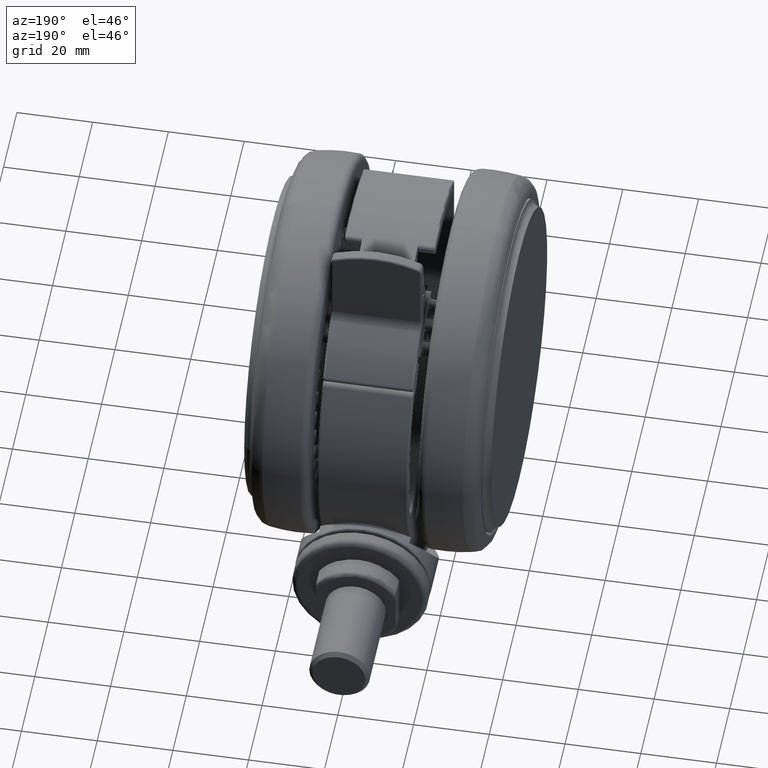
[diagram: clean part render]
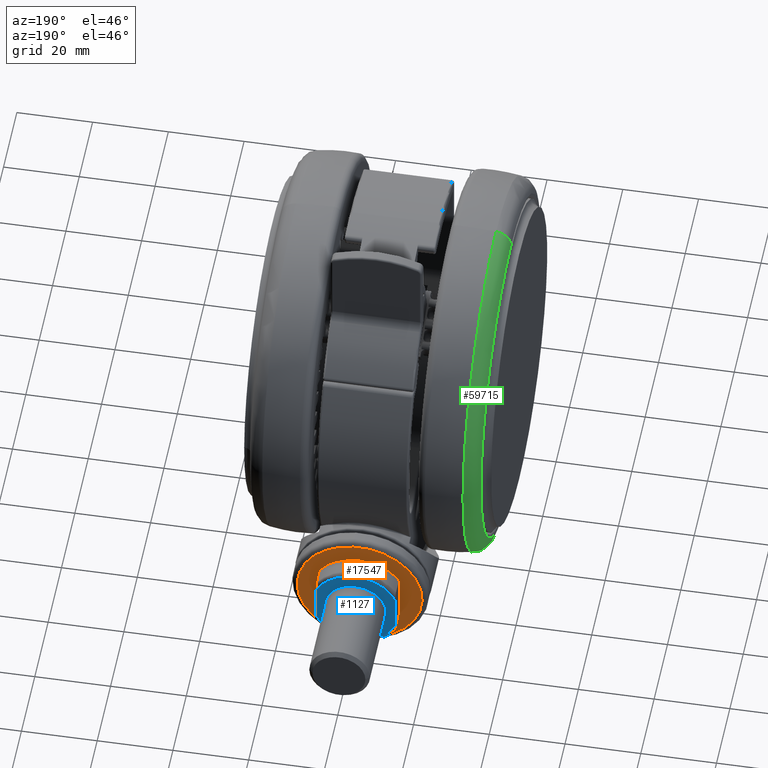
[diagram: same view with three faces highlighted in distinct colors, each labeled with its STEP entity id]
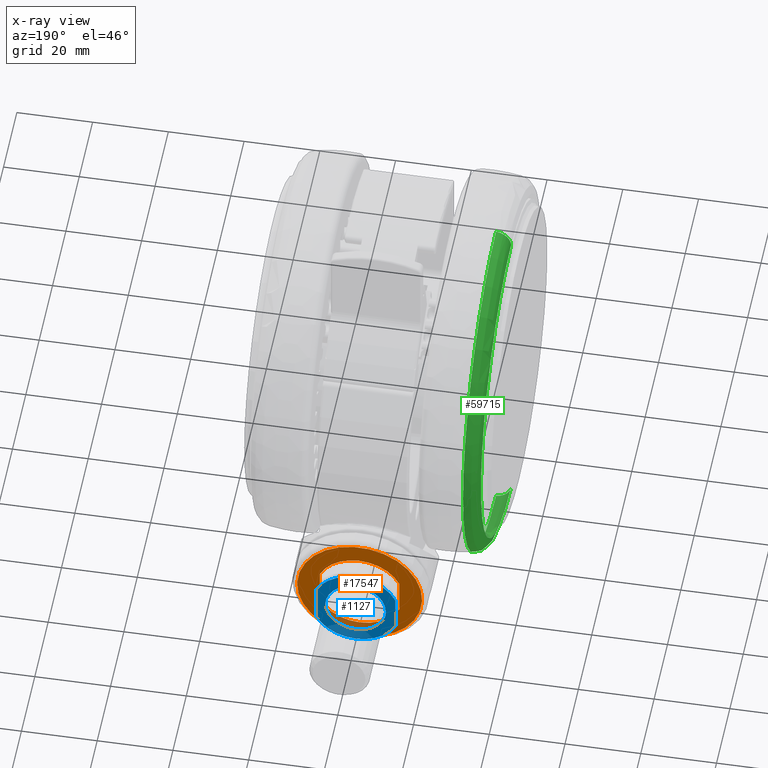
[diagram: x-ray of the same camera — body ghosted, the three highlighted faces saturated]
A machine part, auxiliary view with three faces highlighted in distinct colors.
The next image is the same camera in x-ray (body ghosted, the three faces saturated) — at least one of them is partly hidden behind the body in this view.
Their STEP definitions:

[orange] entity #17547 — the highlighted planar face has unit normal (-0, -1, -0).
#419 = CARTESIAN_POINT ( 'NONE',  ( -53.27953080936357800, 36.08692467634522700, -43.09999999999991600 ) ) ;
#1407 = PLANE ( 'NONE',  #68659 ) ;
#1791 = FACE_BOUND ( 'NONE', #37363, .T. ) ;
#5086 = EDGE_CURVE ( 'NONE', #35143, #78081, #33845, .T. ) ;
#7771 = DIRECTION ( 'NONE',  ( -0.02018180242854338700, -0.9958725363878073700, 0.08849059904447770200 ) ) ;
#8856 = DIRECTION ( 'NONE',  ( 0.02026128721468445700, 0.9997947190500677800, 0.0000000000000000000 ) ) ;
#11025 = ORIENTED_EDGE ( 'NONE', *, *, #31097, .T. ) ;
#11372 = DIRECTION ( 'NONE',  ( 0.9997947190500678900, -0.02026128721468445700, 0.0000000000000000000 ) ) ;
#11390 = VERTEX_POINT ( 'NONE', #12522 ) ;
#12034 = DIRECTION ( 'NONE',  ( -0.9997947190500678900, 0.02026128721468431100, 1.619707083229664900E-031 ) ) ;
#12522 = CARTESIAN_POINT ( 'NONE',  ( -53.61253054943453100, 19.65502782594639800, -31.13990511576603700 ) ) ;
#15863 = VERTEX_POINT ( 'NONE', #69038 ) ;
#16533 = ORIENTED_EDGE ( 'NONE', *, *, #48675, .T. ) ;
#16604 = ORIENTED_EDGE ( 'NONE', *, *, #19060, .T. ) ;
#17373 = AXIS2_PLACEMENT_3D ( 'NONE', #73643, #35833, #79971 ) ;
#17547 = ADVANCED_FACE ( 'NONE', ( #33422, #1791 ), #1407, .F. ) ;
#19060 = EDGE_CURVE ( 'NONE', #35143, #75800, #36676, .T. ) ;
#24087 = CARTESIAN_POINT ( 'NONE',  ( -53.27953080936357100, 36.08692467634522000, -32.59999999999992300 ) ) ;
#28719 = EDGE_LOOP ( 'NONE', ( #61593, #16533 ) ) ;
#29268 = ORIENTED_EDGE ( 'NONE', *, *, #76051, .T. ) ;
#29838 = VECTOR ( 'NONE', #8856, 1000.000000000000100 ) ;
#30432 = DIRECTION ( 'NONE',  ( -0.02018180242854322700, -0.9958725363878073700, 0.08849059904447771600 ) ) ;
#31097 = EDGE_CURVE ( 'NONE', #75800, #61043, #60283, .T. ) ;
#33422 = FACE_OUTER_BOUND ( 'NONE', #28719, .T. ) ;
#33845 = LINE ( 'NONE', #40369, #29838 ) ;
#34632 = CIRCLE ( 'NONE', #17373, 11.50000000000000000 ) ;
#35143 = VERTEX_POINT ( 'NONE', #77950 ) ;
#35833 = DIRECTION ( 'NONE',  ( 0.9997947190500678900, -0.02026128721468445700, 0.0000000000000000000 ) ) ;
#36676 = CIRCLE ( 'NONE', #80377, 11.50000000000000000 ) ;
#37363 = EDGE_LOOP ( 'NONE', ( #16604, #11025, #29268, #47382 ) ) ;
#38273 = AXIS2_PLACEMENT_3D ( 'NONE', #24087, #68280, #30432 ) ;
#39823 = EDGE_CURVE ( 'NONE', #11390, #15863, #70486, .T. ) ;
#40369 = CARTESIAN_POINT ( 'NONE',  ( -53.27953080936357800, 36.08692467634522700, -22.09999999999991300 ) ) ;
#45649 = DIRECTION ( 'NONE',  ( 0.9997947190500678900, -0.02026128721468430800, -4.336808689942018700E-019 ) ) ;
#45860 = CARTESIAN_POINT ( 'NONE',  ( -53.37456467022964500, 31.39747176952455000, -43.09999999999991600 ) ) ;
#47382 = ORIENTED_EDGE ( 'NONE', *, *, #5086, .F. ) ;
#48675 = EDGE_CURVE ( 'NONE', #15863, #11390, #71555, .T. ) ;
#49261 = CARTESIAN_POINT ( 'NONE',  ( -53.27953080936357800, 36.08692467634522700, -32.59999999999991600 ) ) ;
#49934 = CARTESIAN_POINT ( 'NONE',  ( -53.27953080936357100, 36.08692467634522000, -32.59999999999992300 ) ) ;
#55593 = DIRECTION ( 'NONE',  ( 0.0000000000000000000, 0.0000000000000000000, 1.000000000000000000 ) ) ;
#56275 = DIRECTION ( 'NONE',  ( -0.02018180242854322700, -0.9958725363878073700, 0.08849059904447771600 ) ) ;
#60283 = LINE ( 'NONE', #419, #75069 ) ;
#61043 = VERTEX_POINT ( 'NONE', #67124 ) ;
#61593 = ORIENTED_EDGE ( 'NONE', *, *, #39823, .T. ) ;
#67124 = CARTESIAN_POINT ( 'NONE',  ( -53.18449694849751100, 40.77637758316591000, -43.09999999999991600 ) ) ;
#68280 = DIRECTION ( 'NONE',  ( -0.9997947190500678900, 0.02026128721468431100, 1.619707083229664900E-031 ) ) ;
#68659 = AXIS2_PLACEMENT_3D ( 'NONE', #70718, #45649, #7771 ) ;
#69038 = CARTESIAN_POINT ( 'NONE',  ( -52.94653106929260400, 52.51882152674404100, -34.06009488423380600 ) ) ;
#69731 = DIRECTION ( 'NONE',  ( 0.02026128721468445700, 0.9997947190500677800, 0.0000000000000000000 ) ) ;
#70486 = CIRCLE ( 'NONE', #78413, 16.50000000000000400 ) ;
#70718 = CARTESIAN_POINT ( 'NONE',  ( -53.27953080936357100, 36.08692467634522000, -32.59999999999992300 ) ) ;
#71555 = CIRCLE ( 'NONE', #38273, 16.50000000000000400 ) ;
#73643 = CARTESIAN_POINT ( 'NONE',  ( -53.27953080936357800, 36.08692467634522700, -32.59999999999991600 ) ) ;
#75069 = VECTOR ( 'NONE', #69731, 1000.000000000000100 ) ;
#75800 = VERTEX_POINT ( 'NONE', #45860 ) ;
#76051 = EDGE_CURVE ( 'NONE', #61043, #78081, #34632, .T. ) ;
#77950 = CARTESIAN_POINT ( 'NONE',  ( -53.37456467022964500, 31.39747176952455000, -22.09999999999991300 ) ) ;
#78081 = VERTEX_POINT ( 'NONE', #78444 ) ;
#78413 = AXIS2_PLACEMENT_3D ( 'NONE', #49934, #12034, #56275 ) ;
#78444 = CARTESIAN_POINT ( 'NONE',  ( -53.18449694849751100, 40.77637758316591000, -22.09999999999991300 ) ) ;
#79971 = DIRECTION ( 'NONE',  ( 0.0000000000000000000, 0.0000000000000000000, 1.000000000000000000 ) ) ;
#80377 = AXIS2_PLACEMENT_3D ( 'NONE', #49261, #11372, #55593 ) ;

[blue] entity #1127 — the highlighted planar face has unit normal (0, -1, -0).
#622 = ORIENTED_EDGE ( 'NONE', *, *, #29640, .F. ) ;
#1127 = ADVANCED_FACE ( 'NONE', ( #71362, #39749 ), #11566, .F. ) ;
#4121 = CARTESIAN_POINT ( 'NONE',  ( -59.27829912366399200, 36.20849239963333600, -43.09999999999991600 ) ) ;
#5886 = CARTESIAN_POINT ( 'NONE',  ( -59.27829912366399200, 36.20849239963333600, -24.59999999999991300 ) ) ;
#6146 = ORIENTED_EDGE ( 'NONE', *, *, #39470, .T. ) ;
#7749 = CARTESIAN_POINT ( 'NONE',  ( -59.27829912366399200, 36.20849239963333600, -32.59999999999991600 ) ) ;
#9531 = ORIENTED_EDGE ( 'NONE', *, *, #51440, .T. ) ;
#11566 = PLANE ( 'NONE',  #33815 ) ;
#12456 = CIRCLE ( 'NONE', #67510, 8.000000000000000000 ) ;
#14039 = DIRECTION ( 'NONE',  ( 0.0000000000000000000, 0.0000000000000000000, 1.000000000000000000 ) ) ;
#16029 = AXIS2_PLACEMENT_3D ( 'NONE', #57622, #19734, #63936 ) ;
#17506 = CIRCLE ( 'NONE', #78067, 11.50000000000000000 ) ;
#17909 = DIRECTION ( 'NONE',  ( 0.9997947190500678900, -0.02026128721468446100, 0.0000000000000000000 ) ) ;
#19565 = CARTESIAN_POINT ( 'NONE',  ( -59.27829912366399200, 36.20849239963333600, -32.59999999999991600 ) ) ;
#19734 = DIRECTION ( 'NONE',  ( 0.9997947190500678900, -0.02026128721468445700, 0.0000000000000000000 ) ) ;
#19794 = ORIENTED_EDGE ( 'NONE', *, *, #80296, .T. ) ;
#25065 = CARTESIAN_POINT ( 'NONE',  ( -59.18326526279792400, 40.89794530645401200, -22.09999999999991300 ) ) ;
#25881 = EDGE_CURVE ( 'NONE', #81129, #45198, #17506, .T. ) ;
#25960 = DIRECTION ( 'NONE',  ( 0.0000000000000000000, -6.033820786006285700E-016, 1.000000000000000000 ) ) ;
#29211 = AXIS2_PLACEMENT_3D ( 'NONE', #19565, #63769, #25960 ) ;
#29640 = EDGE_CURVE ( 'NONE', #38234, #45198, #64453, .T. ) ;
#31626 = VERTEX_POINT ( 'NONE', #5886 ) ;
#33815 = AXIS2_PLACEMENT_3D ( 'NONE', #68193, #17909, #62118 ) ;
#33862 = CIRCLE ( 'NONE', #16029, 8.000000000000000000 ) ;
#35999 = DIRECTION ( 'NONE',  ( -0.9997947190500678900, 0.02026128721468445700, -0.0000000000000000000 ) ) ;
#38234 = VERTEX_POINT ( 'NONE', #25065 ) ;
#38883 = VERTEX_POINT ( 'NONE', #50942 ) ;
#39470 = EDGE_CURVE ( 'NONE', #38234, #50050, #62627, .T. ) ;
#39749 = FACE_OUTER_BOUND ( 'NONE', #53222, .T. ) ;
#42017 = CARTESIAN_POINT ( 'NONE',  ( -59.37333298453005200, 31.51903949281265600, -43.09999999999991600 ) ) ;
#43948 = LINE ( 'NONE', #4121, #58735 ) ;
#45198 = VERTEX_POINT ( 'NONE', #80982 ) ;
#50050 = VERTEX_POINT ( 'NONE', #52921 ) ;
#50942 = CARTESIAN_POINT ( 'NONE',  ( -59.27829912366399200, 36.20849239963333600, -40.59999999999991600 ) ) ;
#51440 = EDGE_CURVE ( 'NONE', #38883, #31626, #12456, .T. ) ;
#51938 = DIRECTION ( 'NONE',  ( 0.9997947190500678900, -0.02026128721468445700, 0.0000000000000000000 ) ) ;
#52774 = EDGE_LOOP ( 'NONE', ( #9531, #19794 ) ) ;
#52921 = CARTESIAN_POINT ( 'NONE',  ( -59.18326526279792400, 40.89794530645401200, -43.09999999999991600 ) ) ;
#53222 = EDGE_LOOP ( 'NONE', ( #622, #6146, #78671, #60860 ) ) ;
#53497 = EDGE_CURVE ( 'NONE', #50050, #81129, #43948, .T. ) ;
#57622 = CARTESIAN_POINT ( 'NONE',  ( -59.27829912366399200, 36.20849239963333600, -32.59999999999991600 ) ) ;
#58735 = VECTOR ( 'NONE', #79996, 1000.000000000000100 ) ;
#60860 = ORIENTED_EDGE ( 'NONE', *, *, #25881, .T. ) ;
#62118 = DIRECTION ( 'NONE',  ( 0.0000000000000000000, 0.0000000000000000000, 1.000000000000000000 ) ) ;
#62627 = CIRCLE ( 'NONE', #29211, 11.50000000000000000 ) ;
#63769 = DIRECTION ( 'NONE',  ( -0.9997947190500678900, 0.02026128721468445700, -0.0000000000000000000 ) ) ;
#63936 = DIRECTION ( 'NONE',  ( 0.0000000000000000000, 0.0000000000000000000, 1.000000000000000000 ) ) ;
#64453 = LINE ( 'NONE', #74581, #79244 ) ;
#67510 = AXIS2_PLACEMENT_3D ( 'NONE', #7749, #51938, #14039 ) ;
#68193 = CARTESIAN_POINT ( 'NONE',  ( -59.27829912366399200, 36.20849239963333600, -32.59999999999991600 ) ) ;
#71362 = FACE_BOUND ( 'NONE', #52774, .T. ) ;
#73819 = CARTESIAN_POINT ( 'NONE',  ( -59.27829912366399200, 36.20849239963333600, -32.59999999999991600 ) ) ;
#74581 = CARTESIAN_POINT ( 'NONE',  ( -59.27829912366399200, 36.20849239963333600, -22.09999999999991300 ) ) ;
#78067 = AXIS2_PLACEMENT_3D ( 'NONE', #73819, #35999, #80135 ) ;
#78671 = ORIENTED_EDGE ( 'NONE', *, *, #53497, .T. ) ;
#79244 = VECTOR ( 'NONE', #80920, 1000.000000000000100 ) ;
#79996 = DIRECTION ( 'NONE',  ( -0.02026128721468445700, -0.9997947190500677800, 0.0000000000000000000 ) ) ;
#80135 = DIRECTION ( 'NONE',  ( 0.0000000000000000000, 0.0000000000000000000, 1.000000000000000000 ) ) ;
#80296 = EDGE_CURVE ( 'NONE', #31626, #38883, #33862, .T. ) ;
#80920 = DIRECTION ( 'NONE',  ( -0.02026128721468445700, -0.9997947190500677800, 0.0000000000000000000 ) ) ;
#80982 = CARTESIAN_POINT ( 'NONE',  ( -59.37333298453005200, 31.51903949281265600, -22.09999999999991300 ) ) ;
#81129 = VERTEX_POINT ( 'NONE', #42017 ) ;

[green] entity #59715 — the highlighted toroidal blend (fillet) surface has major radius 45 mm and minor (blend) radius 4.5 mm.
#593 = CARTESIAN_POINT ( 'NONE',  ( 4.905534659038757200E-008, 4.841775480546317600E-006, -58.60606618158728800 ) ) ;
#784 = EDGE_LOOP ( 'NONE', ( #49734, #36522, #25749, #62447 ) ) ;
#3358 = AXIS2_PLACEMENT_3D ( 'NONE', #63403, #25581, #69749 ) ;
#3842 = FACE_OUTER_BOUND ( 'NONE', #784, .T. ) ;
#4226 = CIRCLE ( 'NONE', #3358, 45.27272727274608900 ) ;
#5659 = CARTESIAN_POINT ( 'NONE',  ( 0.9172837793206922700, 45.26343848606880000, -63.09779411578138300 ) ) ;
#5811 = TOROIDAL_SURFACE ( 'NONE', #16702, 45.00000000000000000, 4.500000000013238300 ) ;
#7193 = EDGE_CURVE ( 'NONE', #81741, #59992, #72121, .T. ) ;
#13748 = CARTESIAN_POINT ( 'NONE',  ( 4.905534659038757200E-008, 4.841775480546317600E-006, -59.10420351503971400 ) ) ;
#16702 = AXIS2_PLACEMENT_3D ( 'NONE', #593, #50897, #44815 ) ;
#20104 = DIRECTION ( 'NONE',  ( -0.02026128721468459900, -0.9997947190500677800, 0.0000000000000000000 ) ) ;
#22502 = CARTESIAN_POINT ( 'NONE',  ( -0.9117578756054605100, -44.99075751547756900, -58.60606618158728800 ) ) ;
#25581 = DIRECTION ( 'NONE',  ( -0.0000000000000000000, 0.0000000000000000000, -1.000000000000000000 ) ) ;
#25667 = CARTESIAN_POINT ( 'NONE',  ( -0.9172836812100044800, -45.26342880251783600, -63.09779411578138300 ) ) ;
#25749 = ORIENTED_EDGE ( 'NONE', *, *, #80254, .F. ) ;
#28867 = DIRECTION ( 'NONE',  ( 0.02026128721468458200, 0.9997947190500678900, 0.0000000000000000000 ) ) ;
#32786 = DIRECTION ( 'NONE',  ( -0.9997947190500678900, 0.02026128721468448100, 0.0000000000000000000 ) ) ;
#33328 = VERTEX_POINT ( 'NONE', #5659 ) ;
#36522 = ORIENTED_EDGE ( 'NONE', *, *, #64744, .T. ) ;
#38582 = EDGE_CURVE ( 'NONE', #81741, #81658, #48024, .T. ) ;
#44815 = DIRECTION ( 'NONE',  ( -0.02026128721468459900, -0.9997947190500677800, 0.0000000000000000000 ) ) ;
#46450 = AXIS2_PLACEMENT_3D ( 'NONE', #13748, #57981, #20104 ) ;
#48024 = CIRCLE ( 'NONE', #48284, 4.500000000013241900 ) ;
#48284 = AXIS2_PLACEMENT_3D ( 'NONE', #22502, #66676, #28867 ) ;
#49734 = ORIENTED_EDGE ( 'NONE', *, *, #7193, .T. ) ;
#50897 = DIRECTION ( 'NONE',  ( -0.0000000000000000000, 0.0000000000000000000, -1.000000000000000000 ) ) ;
#57981 = DIRECTION ( 'NONE',  ( -0.0000000000000000000, 0.0000000000000000000, -1.000000000000000000 ) ) ;
#59715 = ADVANCED_FACE ( 'NONE', ( #3842 ), #5811, .T. ) ;
#59992 = VERTEX_POINT ( 'NONE', #60485 ) ;
#60485 = CARTESIAN_POINT ( 'NONE',  ( 1.002373416269179800, 49.46219292677030700, -59.10420351503971400 ) ) ;
#60917 = CIRCLE ( 'NONE', #72610, 4.500000000013241900 ) ;
#62447 = ORIENTED_EDGE ( 'NONE', *, *, #38582, .F. ) ;
#63403 = CARTESIAN_POINT ( 'NONE',  ( 4.905534659038757200E-008, 4.841775480546317600E-006, -63.09779411578138300 ) ) ;
#64028 = CARTESIAN_POINT ( 'NONE',  ( -1.002373318158492600, -49.46218324321935000, -59.10420351503971400 ) ) ;
#64744 = EDGE_CURVE ( 'NONE', #59992, #33328, #60917, .T. ) ;
#66676 = DIRECTION ( 'NONE',  ( 0.9997947190500678900, -0.02026128721468460300, -0.0000000000000000000 ) ) ;
#69749 = DIRECTION ( 'NONE',  ( -0.02026128721468460300, -0.9997947190500678900, 0.0000000000000000000 ) ) ;
#70606 = CARTESIAN_POINT ( 'NONE',  ( 0.9117579737161482000, 44.99076719902853200, -58.60606618158728800 ) ) ;
#72121 = CIRCLE ( 'NONE', #46450, 49.47234381472850400 ) ;
#72610 = AXIS2_PLACEMENT_3D ( 'NONE', #70606, #32786, #76943 ) ;
#76943 = DIRECTION ( 'NONE',  ( -0.02026128721468446400, -0.9997947190500678900, 0.0000000000000000000 ) ) ;
#80254 = EDGE_CURVE ( 'NONE', #81658, #33328, #4226, .T. ) ;
#81658 = VERTEX_POINT ( 'NONE', #25667 ) ;
#81741 = VERTEX_POINT ( 'NONE', #64028 ) ;